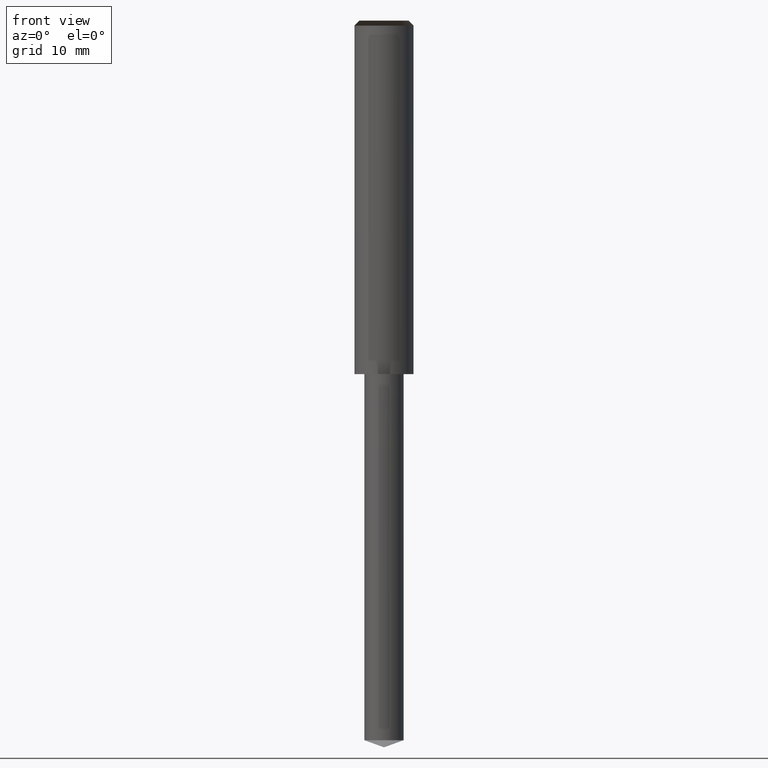
[diagram: clean part render]
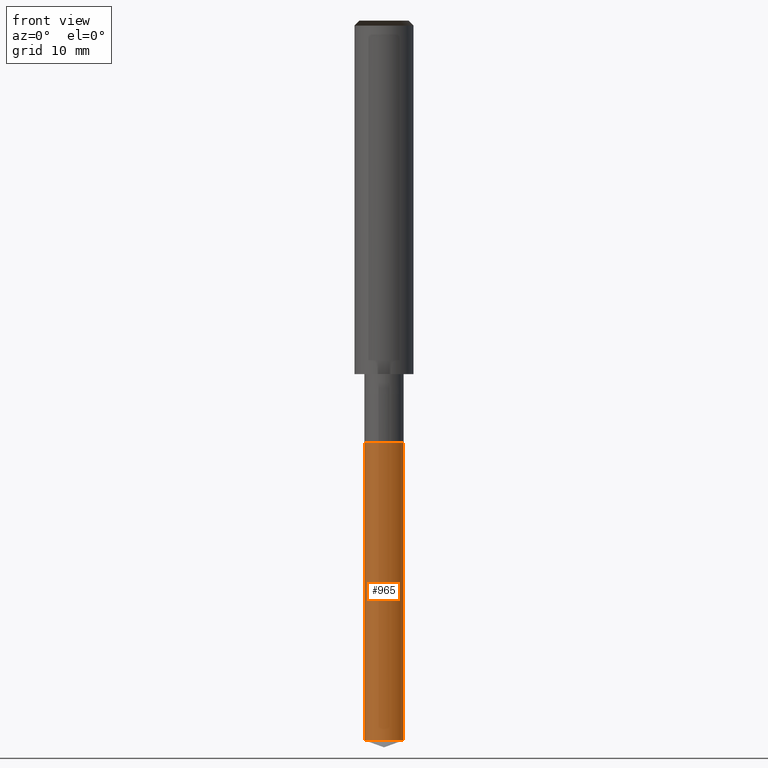
[diagram: same view with one face highlighted and labeled with its STEP entity id]
A machine part, front view. The second image highlights one B-rep face of the part: STEP entity #965.
In plain terms, the highlighted face is a freeform B-spline surface patch.
Its self-contained STEP definition (entity closure, byte-faithful):
#815=CARTESIAN_POINT('',(2.0,0.0,-37.272059531468));
#819=CARTESIAN_POINT('',(-2.0,0.0,-37.272059531468));
#820=CARTESIAN_POINT('',(2.0,0.0,-7.0));
#824=CARTESIAN_POINT('',(-2.0,0.0,-7.0));
#826=CARTESIAN_POINT('',(-2.0,-2.0,-37.272059531468));
#827=CARTESIAN_POINT('',(0.0,-2.0,-37.272059531468));
#828=CARTESIAN_POINT('',(2.0,-2.0,-37.272059531468));
#829=CARTESIAN_POINT('',(-2.0,-2.0,-7.0));
#830=CARTESIAN_POINT('',(0.0,-2.0,-7.0));
#831=CARTESIAN_POINT('',(2.0,-2.0,-7.0));
#946=(
BOUNDED_SURFACE()
B_SPLINE_SURFACE(1,2,(
(#819,#826,#827,#828,#815),
(#824,#829,#830,#831,#820)
), .UNSPECIFIED.,.F.,.F.,.F.)
B_SPLINE_SURFACE_WITH_KNOTS((2,2),(3,2,3),(
0.0,1.0),(
0.0,0.5,1.0), .UNSPECIFIED.)
GEOMETRIC_REPRESENTATION_ITEM()
RATIONAL_B_SPLINE_SURFACE(((1.0,0.707106781187,1.0,0.707106781187,1.0),
(1.0,0.707106781187,1.0,0.707106781187,1.0)
))
REPRESENTATION_ITEM('')
SURFACE()
);
#947=(
BOUNDED_CURVE()
B_SPLINE_CURVE(2,(#815,#828,#827,#826,#819),.UNSPECIFIED.,.F.,.F.)
B_SPLINE_CURVE_WITH_KNOTS((3,2,3),
(0.0,0.5,1.0),.UNSPECIFIED.)
CURVE()
GEOMETRIC_REPRESENTATION_ITEM()
RATIONAL_B_SPLINE_CURVE((1.0,0.707106781187,1.0,0.707106781187,1.0))
REPRESENTATION_ITEM('')
);
#948=(
BOUNDED_CURVE()
B_SPLINE_CURVE(1,(#819,#824),.UNSPECIFIED.,.F.,.F.)
B_SPLINE_CURVE_WITH_KNOTS((2,2),
(0.0,1.0),.UNSPECIFIED.)
CURVE()
GEOMETRIC_REPRESENTATION_ITEM()
RATIONAL_B_SPLINE_CURVE((1.0,1.0))
REPRESENTATION_ITEM('')
);
#949=(
BOUNDED_CURVE()
B_SPLINE_CURVE(2,(#824,#829,#830,#831,#820),.UNSPECIFIED.,.F.,.F.)
B_SPLINE_CURVE_WITH_KNOTS((3,2,3),
(0.0,0.5,1.0),.UNSPECIFIED.)
CURVE()
GEOMETRIC_REPRESENTATION_ITEM()
RATIONAL_B_SPLINE_CURVE((1.0,0.707106781187,1.0,0.707106781187,1.0))
REPRESENTATION_ITEM('')
);
#950=(
BOUNDED_CURVE()
B_SPLINE_CURVE(1,(#820,#815),.UNSPECIFIED.,.F.,.F.)
B_SPLINE_CURVE_WITH_KNOTS((2,2),
(0.0,1.0),.UNSPECIFIED.)
CURVE()
GEOMETRIC_REPRESENTATION_ITEM()
RATIONAL_B_SPLINE_CURVE((1.0,1.0))
REPRESENTATION_ITEM('')
);
#951=VERTEX_POINT('',#815);
#952=VERTEX_POINT('',#819);
#953=VERTEX_POINT('',#820);
#954=VERTEX_POINT('',#824);
#955=EDGE_CURVE('',#951,#952,#947,.T.);
#956=EDGE_CURVE('',#952,#954,#948,.T.);
#957=EDGE_CURVE('',#954,#953,#949,.T.);
#958=EDGE_CURVE('',#953,#951,#950,.T.);
#959=ORIENTED_EDGE('',*,*,#955,.T.);
#960=ORIENTED_EDGE('',*,*,#956,.T.);
#961=ORIENTED_EDGE('',*,*,#957,.T.);
#962=ORIENTED_EDGE('',*,*,#958,.T.);
#963=EDGE_LOOP('',(#959,#960,#961,#962));
#964=FACE_OUTER_BOUND('',#963,.T.);
#965=ADVANCED_FACE('',(#964),#946,.T.);